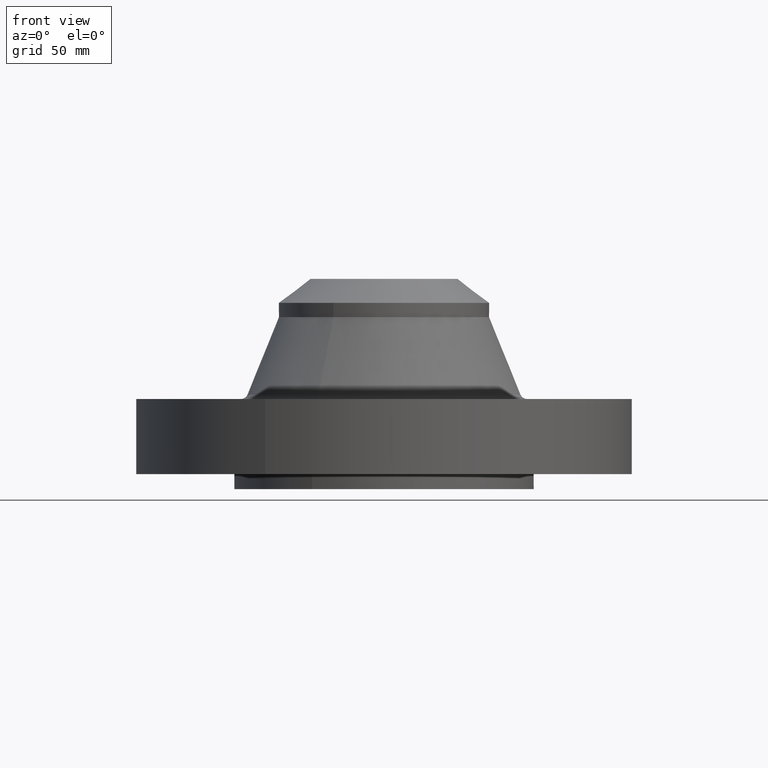
[diagram: clean part render]
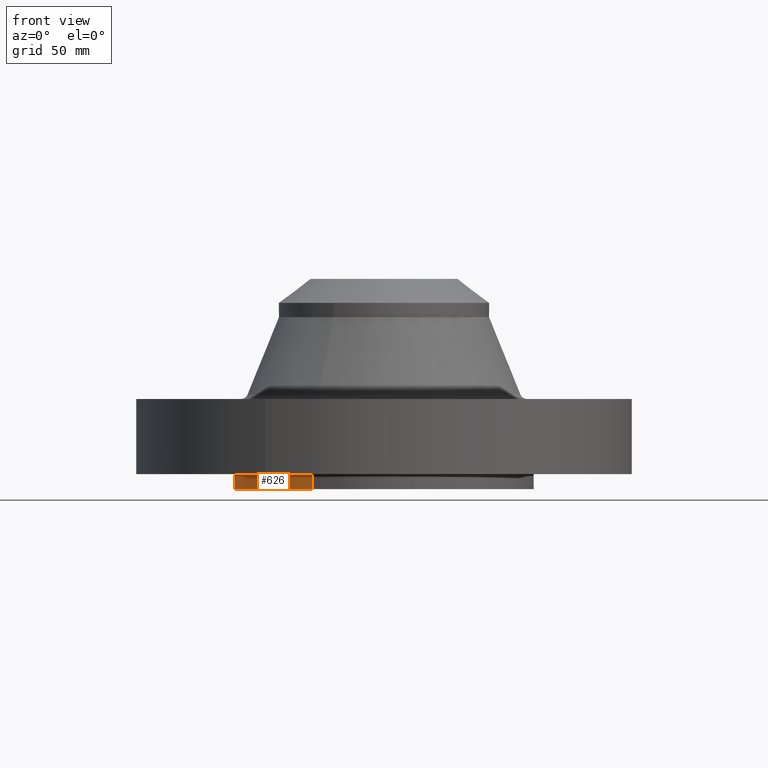
[diagram: same view with one face highlighted and labeled with its STEP entity id]
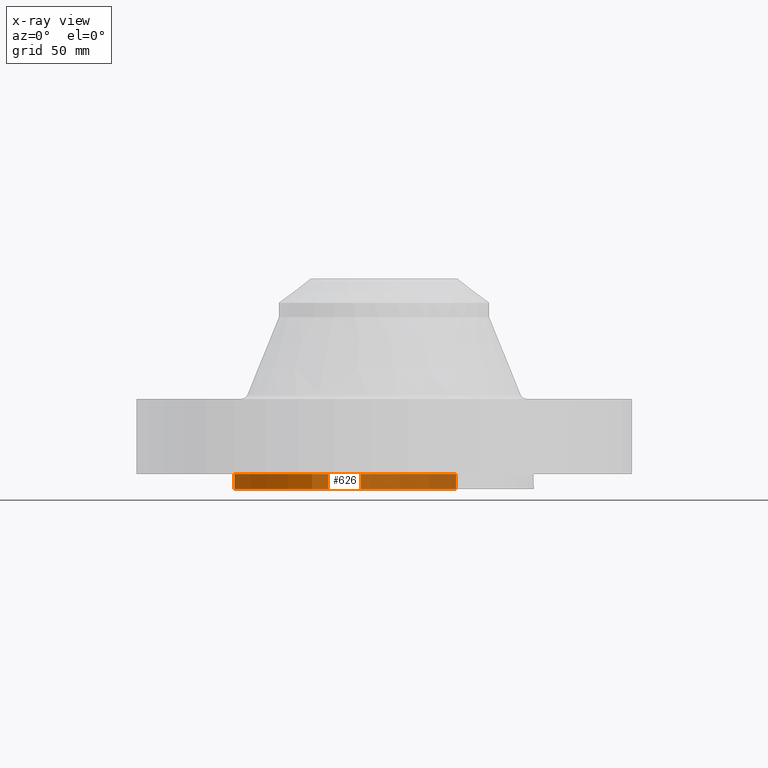
[diagram: x-ray of the same camera — body ghosted, the highlighted face saturated]
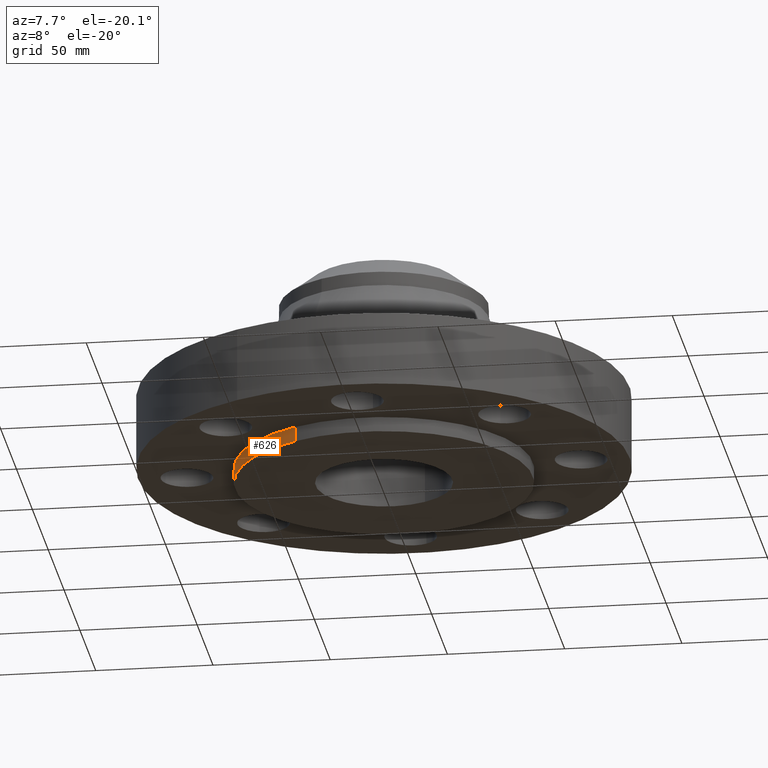
[diagram: same view with one face highlighted and labeled with its STEP entity id]
A machine part, front view. The second image highlights one B-rep face of the part: STEP entity #626.
The next image is the same camera in x-ray: the body ghosted, the highlighted face saturated — about 65% of this face is hidden behind the body in this view.
A second angle (auxiliary view) of the same face is appended — the face is thin or edge-on in the first view.
In plain terms, the highlighted cylindrical surface (partial cylindrical patch) has radius 63.5 mm, axis along (0, 0, -1).
Its self-contained STEP definition (entity closure, byte-faithful):
#174=AXIS2_PLACEMENT_3D('Circle Axis2P3D',#172,#173,$) ;
#613=AXIS2_PLACEMENT_3D('Cylinder Axis2P3D',#610,#611,#612) ;
#617=AXIS2_PLACEMENT_3D('Circle Axis2P3D',#615,#616,$) ;
#167=CARTESIAN_POINT('Vertex',(1.19856384652,2.19395640473,2.46661833566E-011)) ;
#169=CARTESIAN_POINT('Vertex',(-1.19856384652,-2.19395640473,2.46661833566E-011)) ;
#172=CARTESIAN_POINT('Axis2P3D Location',(0.,1.00001896527E-011,0.)) ;
#581=CARTESIAN_POINT('Vertex',(1.19856384649,2.19395640471,-0.250000000001)) ;
#583=CARTESIAN_POINT('Vertex',(-1.19856384649,-2.19395640471,-0.250000000001)) ;
#586=CARTESIAN_POINT('Line Origine',(1.19856384652,2.19395640473,-0.125000000005)) ;
#591=CARTESIAN_POINT('Line Origine',(-1.19856384652,-2.19395640473,-0.125000000005)) ;
#610=CARTESIAN_POINT('Axis2P3D Location',(0.,0.,1.50000000001)) ;
#615=CARTESIAN_POINT('Axis2P3D Location',(0.,0.,-0.250000000034)) ;
#173=DIRECTION('Axis2P3D Direction',(0.,0.,-0.0393700787402)) ;
#587=DIRECTION('Vector Direction',(0.,0.,-0.0393700787402)) ;
#592=DIRECTION('Vector Direction',(0.,0.,-0.0393700787402)) ;
#611=DIRECTION('Axis2P3D Direction',(0.,0.,-0.0393700787402)) ;
#612=DIRECTION('Axis2P3D XDirection',(-0.0188750212049,-0.0345504945626,0.)) ;
#616=DIRECTION('Axis2P3D Direction',(0.,0.,-0.0393700787402)) ;
#588=VECTOR('Line Direction',#587,0.0393700787402) ;
#593=VECTOR('Line Direction',#592,0.0393700787402) ;
#621=ORIENTED_EDGE('',*,*,#619,.F.) ;
#622=ORIENTED_EDGE('',*,*,#595,.T.) ;
#623=ORIENTED_EDGE('',*,*,#176,.T.) ;
#624=ORIENTED_EDGE('',*,*,#590,.F.) ;
#626=ADVANCED_FACE('PartBody',(#625),#614,.T.) ;
#175=CIRCLE('generated circle',#174,2.50000000001) ;
#618=CIRCLE('generated circle',#617,2.50000000001) ;
#614=CYLINDRICAL_SURFACE('generated cylinder',#613,2.50000000001) ;
#176=EDGE_CURVE('',#170,#168,#175,.T.) ;
#590=EDGE_CURVE('',#582,#168,#589,.F.) ;
#595=EDGE_CURVE('',#584,#170,#594,.F.) ;
#619=EDGE_CURVE('',#584,#582,#618,.T.) ;
#620=EDGE_LOOP('',(#621,#622,#623,#624)) ;
#625=FACE_OUTER_BOUND('',#620,.T.) ;
#589=LINE('Line',#586,#588) ;
#594=LINE('Line',#591,#593) ;
#168=VERTEX_POINT('',#167) ;
#170=VERTEX_POINT('',#169) ;
#582=VERTEX_POINT('',#581) ;
#584=VERTEX_POINT('',#583) ;